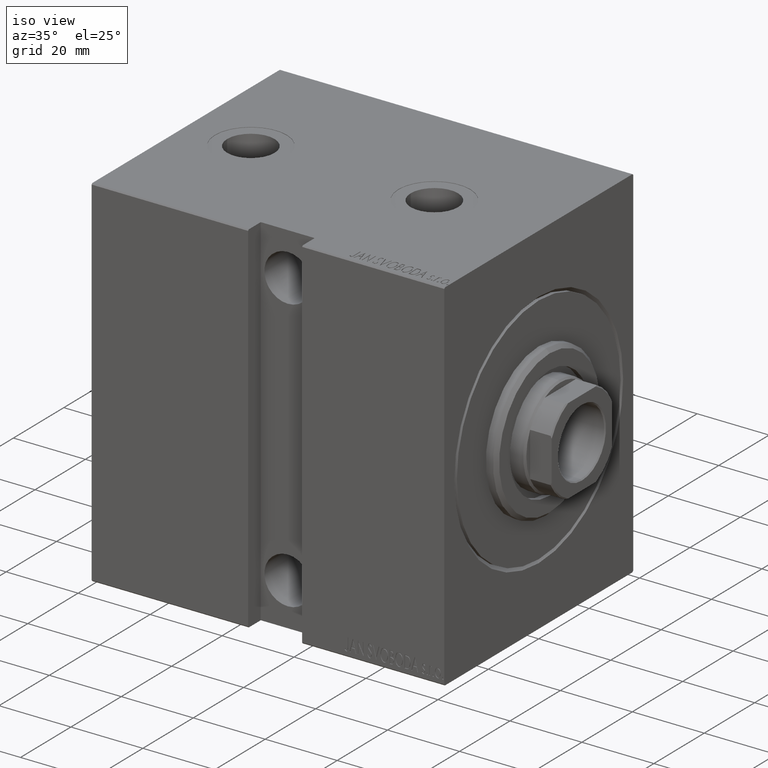
[diagram: clean part render]
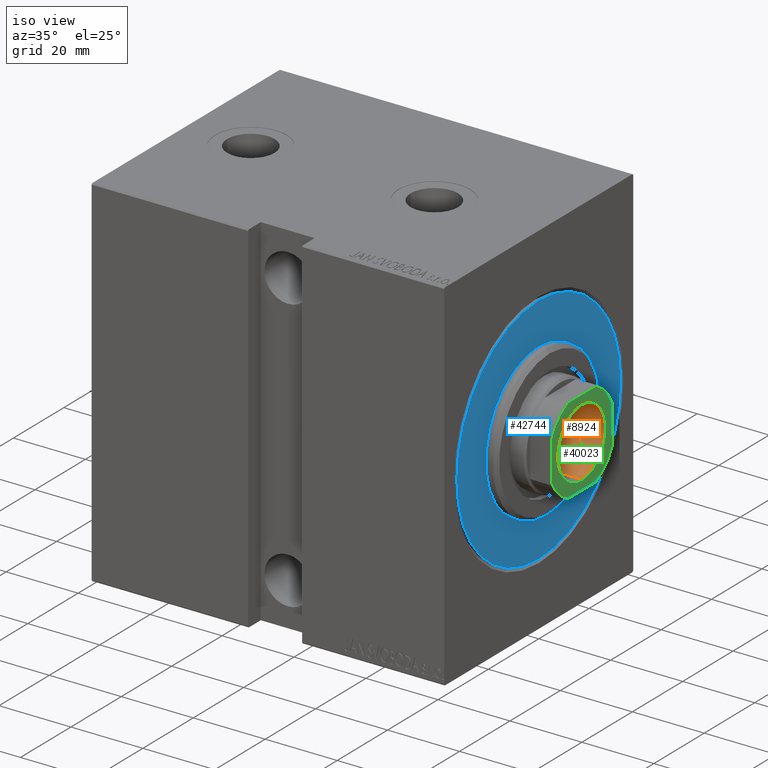
[diagram: same view with three faces highlighted in distinct colors, each labeled with its STEP entity id]
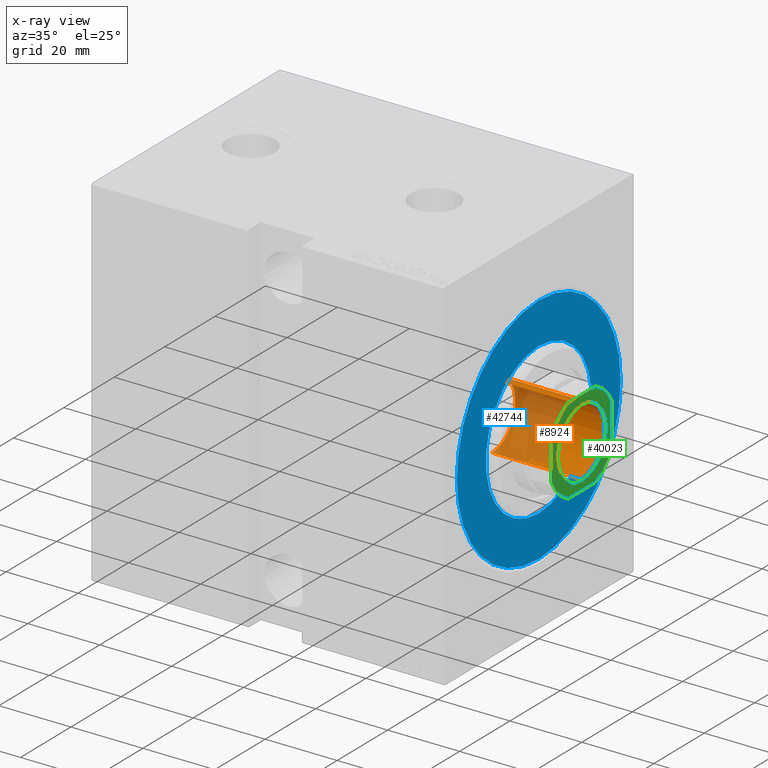
[diagram: x-ray of the same camera — body ghosted, the three highlighted faces saturated]
A machine part, iso view with three faces highlighted in distinct colors.
The next image is the same camera in x-ray (body ghosted, the three faces saturated) — at least one of them is partly hidden behind the body in this view.
Their STEP definitions:

[orange] entity #8924 — the highlighted cylindrical surface (partial cylindrical patch) has radius 9.25 mm, axis along (1, 0, -0).
#1691 = VERTEX_POINT ( 'NONE', #11548 ) ;
#8011 = VECTOR ( 'NONE', #29185, 1000.000000000000000 ) ;
#8526 = DIRECTION ( 'NONE',  ( -0.000000000000000000, -0.000000000000000000, 1.000000000000000000 ) ) ;
#8672 = VECTOR ( 'NONE', #35101, 1000.000000000000000 ) ;
#8924 = ADVANCED_FACE ( 'NONE', ( #23290 ), #12854, .F. ) ;
#9182 = VERTEX_POINT ( 'NONE', #21531 ) ;
#9196 = LINE ( 'NONE', #28970, #8011 ) ;
#11204 = VERTEX_POINT ( 'NONE', #18315 ) ;
#11548 = CARTESIAN_POINT ( 'NONE',  ( -9.249999999999994671, 1.132798289211300909E-15, 95.70000000000000284 ) ) ;
#12069 = LINE ( 'NONE', #41620, #8672 ) ;
#12141 = ORIENTED_EDGE ( 'NONE', *, *, #13142, .F. ) ;
#12854 = CYLINDRICAL_SURFACE ( 'NONE', #13900, 9.249999999999994671 ) ;
#13142 = EDGE_CURVE ( 'NONE', #11204, #9182, #13287, .T. ) ;
#13287 = CIRCLE ( 'NONE', #41736, 9.249999999999994671 ) ;
#13900 = AXIS2_PLACEMENT_3D ( 'NONE', #26130, #32621, #16770 ) ;
#16770 = DIRECTION ( 'NONE',  ( 1.000000000000000000, 0.000000000000000000, 0.000000000000000000 ) ) ;
#16860 = VERTEX_POINT ( 'NONE', #24659 ) ;
#18063 = DIRECTION ( 'NONE',  ( 0.000000000000000000, 0.000000000000000000, 1.000000000000000000 ) ) ;
#18315 = CARTESIAN_POINT ( 'NONE',  ( 9.249999999999994671, 0.000000000000000000, 71.00000000000001421 ) ) ;
#18784 = ORIENTED_EDGE ( 'NONE', *, *, #20023, .T. ) ;
#20023 = EDGE_CURVE ( 'NONE', #16860, #1691, #30958, .T. ) ;
#21531 = CARTESIAN_POINT ( 'NONE',  ( -9.249999999999994671, 1.132798289211300909E-15, 71.00000000000001421 ) ) ;
#23290 = FACE_OUTER_BOUND ( 'NONE', #38792, .T. ) ;
#24659 = CARTESIAN_POINT ( 'NONE',  ( 9.249999999999994671, 0.000000000000000000, 95.70000000000000284 ) ) ;
#26130 = CARTESIAN_POINT ( 'NONE',  ( 0.000000000000000000, 0.000000000000000000, 96.00000000000000000 ) ) ;
#28855 = AXIS2_PLACEMENT_3D ( 'NONE', #36749, #18063, #34350 ) ;
#28970 = CARTESIAN_POINT ( 'NONE',  ( -9.249999999999994671, 1.132798289211300909E-15, 96.00000000000000000 ) ) ;
#29185 = DIRECTION ( 'NONE',  ( -0.000000000000000000, -0.000000000000000000, 1.000000000000000000 ) ) ;
#30652 = ORIENTED_EDGE ( 'NONE', *, *, #36594, .T. ) ;
#30958 = CIRCLE ( 'NONE', #28855, 9.249999999999994671 ) ;
#32621 = DIRECTION ( 'NONE',  ( -0.000000000000000000, -0.000000000000000000, 1.000000000000000000 ) ) ;
#34350 = DIRECTION ( 'NONE',  ( 1.000000000000000000, 0.000000000000000000, 0.000000000000000000 ) ) ;
#35101 = DIRECTION ( 'NONE',  ( -0.000000000000000000, -0.000000000000000000, 1.000000000000000000 ) ) ;
#35373 = ORIENTED_EDGE ( 'NONE', *, *, #36976, .F. ) ;
#36594 = EDGE_CURVE ( 'NONE', #11204, #16860, #12069, .T. ) ;
#36749 = CARTESIAN_POINT ( 'NONE',  ( 0.000000000000000000, 0.000000000000000000, 95.70000000000000284 ) ) ;
#36976 = EDGE_CURVE ( 'NONE', #9182, #1691, #9196, .T. ) ;
#38285 = CARTESIAN_POINT ( 'NONE',  ( 0.000000000000000000, 0.000000000000000000, 71.00000000000001421 ) ) ;
#38792 = EDGE_LOOP ( 'NONE', ( #35373, #12141, #30652, #18784 ) ) ;
#39127 = DIRECTION ( 'NONE',  ( 1.000000000000000000, 0.000000000000000000, 0.000000000000000000 ) ) ;
#41620 = CARTESIAN_POINT ( 'NONE',  ( 9.249999999999994671, 0.000000000000000000, 96.00000000000000000 ) ) ;
#41736 = AXIS2_PLACEMENT_3D ( 'NONE', #38285, #8526, #39127 ) ;

[blue] entity #42744 — the highlighted planar face has unit normal (1, 0, 0).
#224 = CARTESIAN_POINT ( 'NONE',  ( 0.000000000000000000, 0.000000000000000000, 0.000000000000000000 ) ) ;
#2934 = EDGE_CURVE ( 'NONE', #21299, #18151, #36067, .T. ) ;
#3271 = DIRECTION ( 'NONE',  ( 0.000000000000000000, 0.000000000000000000, -1.000000000000000000 ) ) ;
#3283 = DIRECTION ( 'NONE',  ( 1.000000000000000000, 0.000000000000000000, 0.000000000000000000 ) ) ;
#4203 = ORIENTED_EDGE ( 'NONE', *, *, #34778, .F. ) ;
#6534 = FACE_BOUND ( 'NONE', #32728, .T. ) ;
#6968 = FACE_OUTER_BOUND ( 'NONE', #21206, .T. ) ;
#7317 = ORIENTED_EDGE ( 'NONE', *, *, #17319, .T. ) ;
#11096 = AXIS2_PLACEMENT_3D ( 'NONE', #11450, #37956, #25345 ) ;
#11223 = EDGE_CURVE ( 'NONE', #40612, #36296, #18800, .T. ) ;
#11450 = CARTESIAN_POINT ( 'NONE',  ( 0.000000000000000000, 0.000000000000000000, 0.000000000000000000 ) ) ;
#15886 = CARTESIAN_POINT ( 'NONE',  ( 0.000000000000000000, 3.980102097228898626E-15, 32.50000000000000000 ) ) ;
#17319 = EDGE_CURVE ( 'NONE', #18151, #21299, #31561, .T. ) ;
#18151 = VERTEX_POINT ( 'NONE', #26593 ) ;
#18800 = CIRCLE ( 'NONE', #36164, 21.00000000000000000 ) ;
#19790 = PLANE ( 'NONE',  #33707 ) ;
#21163 = CIRCLE ( 'NONE', #33639, 21.00000000000000000 ) ;
#21206 = EDGE_LOOP ( 'NONE', ( #7317, #27562 ) ) ;
#21299 = VERTEX_POINT ( 'NONE', #15886 ) ;
#21426 = DIRECTION ( 'NONE',  ( 0.000000000000000000, 0.000000000000000000, -1.000000000000000000 ) ) ;
#24666 = AXIS2_PLACEMENT_3D ( 'NONE', #224, #42795, #3271 ) ;
#24692 = DIRECTION ( 'NONE',  ( 1.000000000000000000, -0.000000000000000000, 0.000000000000000000 ) ) ;
#25345 = DIRECTION ( 'NONE',  ( 0.000000000000000000, 0.000000000000000000, -1.000000000000000000 ) ) ;
#26593 = CARTESIAN_POINT ( 'NONE',  ( 0.000000000000000000, 0.000000000000000000, -32.50000000000000000 ) ) ;
#27562 = ORIENTED_EDGE ( 'NONE', *, *, #2934, .T. ) ;
#28152 = CARTESIAN_POINT ( 'NONE',  ( 0.000000000000000000, 0.000000000000000000, 0.000000000000000000 ) ) ;
#28550 = ORIENTED_EDGE ( 'NONE', *, *, #11223, .F. ) ;
#29063 = CARTESIAN_POINT ( 'NONE',  ( 0.000000000000000000, 2.571758278209441661E-15, -21.00000000000000000 ) ) ;
#29791 = DIRECTION ( 'NONE',  ( 0.000000000000000000, 0.000000000000000000, -1.000000000000000000 ) ) ;
#30941 = CARTESIAN_POINT ( 'NONE',  ( 0.000000000000000000, 0.000000000000000000, 0.000000000000000000 ) ) ;
#31360 = DIRECTION ( 'NONE',  ( 1.000000000000000000, -0.000000000000000000, 0.000000000000000000 ) ) ;
#31561 = CIRCLE ( 'NONE', #24666, 32.50000000000000000 ) ;
#32728 = EDGE_LOOP ( 'NONE', ( #4203, #28550 ) ) ;
#33039 = CARTESIAN_POINT ( 'NONE',  ( 0.000000000000000000, 0.000000000000000000, 0.000000000000000000 ) ) ;
#33639 = AXIS2_PLACEMENT_3D ( 'NONE', #28152, #24692, #21426 ) ;
#33707 = AXIS2_PLACEMENT_3D ( 'NONE', #33039, #3283, #29791 ) ;
#34616 = DIRECTION ( 'NONE',  ( 0.000000000000000000, 0.000000000000000000, -1.000000000000000000 ) ) ;
#34778 = EDGE_CURVE ( 'NONE', #36296, #40612, #21163, .T. ) ;
#36067 = CIRCLE ( 'NONE', #11096, 32.50000000000000000 ) ;
#36164 = AXIS2_PLACEMENT_3D ( 'NONE', #30941, #31360, #34616 ) ;
#36296 = VERTEX_POINT ( 'NONE', #39526 ) ;
#37956 = DIRECTION ( 'NONE',  ( 1.000000000000000000, 0.000000000000000000, 0.000000000000000000 ) ) ;
#39526 = CARTESIAN_POINT ( 'NONE',  ( 0.000000000000000000, 0.000000000000000000, 21.00000000000000000 ) ) ;
#40612 = VERTEX_POINT ( 'NONE', #29063 ) ;
#42744 = ADVANCED_FACE ( 'NONE', ( #6968, #6534 ), #19790, .T. ) ;
#42795 = DIRECTION ( 'NONE',  ( 1.000000000000000000, 0.000000000000000000, 0.000000000000000000 ) ) ;

[green] entity #40023 — the highlighted planar face has unit normal (1, 0, -0).
#79 = VERTEX_POINT ( 'NONE', #18540 ) ;
#163 = CARTESIAN_POINT ( 'NONE',  ( 0.000000000000000000, 0.000000000000000000, 96.00000000000000000 ) ) ;
#614 = EDGE_CURVE ( 'NONE', #6730, #19639, #24929, .T. ) ;
#1075 = CARTESIAN_POINT ( 'NONE',  ( 0.000000000000000000, 0.000000000000000000, 96.00000000000000000 ) ) ;
#1114 = CARTESIAN_POINT ( 'NONE',  ( -5.499090833947067658, 11.99999999999999645, 96.00000000000000000 ) ) ;
#1576 = VERTEX_POINT ( 'NONE', #26894 ) ;
#2076 = CARTESIAN_POINT ( 'NONE',  ( -12.00000000000000178, 5.499090833947057000, 96.00000000000000000 ) ) ;
#2512 = VERTEX_POINT ( 'NONE', #6956 ) ;
#2694 = CARTESIAN_POINT ( 'NONE',  ( 11.99999999999999645, 5.499090833947039236, 96.00000000000000000 ) ) ;
#3247 = AXIS2_PLACEMENT_3D ( 'NONE', #26546, #12841, #39773 ) ;
#4165 = CIRCLE ( 'NONE', #31914, 13.20000000000000995 ) ;
#4728 = CARTESIAN_POINT ( 'NONE',  ( -12.00000000000000355, 11.99999999999999645, 96.00000000000000000 ) ) ;
#4834 = VERTEX_POINT ( 'NONE', #28014 ) ;
#5071 = VERTEX_POINT ( 'NONE', #7106 ) ;
#5979 = EDGE_CURVE ( 'NONE', #1576, #6730, #24728, .T. ) ;
#6134 = FACE_OUTER_BOUND ( 'NONE', #37270, .T. ) ;
#6245 = DIRECTION ( 'NONE',  ( 1.000000000000000000, 0.000000000000000000, 0.000000000000000000 ) ) ;
#6313 = VERTEX_POINT ( 'NONE', #15515 ) ;
#6730 = VERTEX_POINT ( 'NONE', #1114 ) ;
#6956 = CARTESIAN_POINT ( 'NONE',  ( 5.499090833947025914, -12.00000000000000355, 96.00000000000000000 ) ) ;
#7106 = CARTESIAN_POINT ( 'NONE',  ( 9.549999999999988276, 0.000000000000000000, 96.00000000000000000 ) ) ;
#8109 = CIRCLE ( 'NONE', #17812, 9.549999999999988276 ) ;
#8677 = EDGE_CURVE ( 'NONE', #2512, #79, #4165, .T. ) ;
#8967 = VECTOR ( 'NONE', #34488, 1000.000000000000000 ) ;
#9573 = ORIENTED_EDGE ( 'NONE', *, *, #8677, .T. ) ;
#9920 = ORIENTED_EDGE ( 'NONE', *, *, #11739, .T. ) ;
#10566 = CARTESIAN_POINT ( 'NONE',  ( -11.99999999999999822, -12.00000000000000355, 96.00000000000000000 ) ) ;
#11616 = ORIENTED_EDGE ( 'NONE', *, *, #36963, .T. ) ;
#11739 = EDGE_CURVE ( 'NONE', #4834, #2512, #40112, .T. ) ;
#12197 = AXIS2_PLACEMENT_3D ( 'NONE', #13198, #22984, #36004 ) ;
#12433 = ORIENTED_EDGE ( 'NONE', *, *, #27068, .T. ) ;
#12666 = CARTESIAN_POINT ( 'NONE',  ( 0.000000000000000000, 0.000000000000000000, 96.00000000000000000 ) ) ;
#12841 = DIRECTION ( 'NONE',  ( -0.000000000000000000, 0.000000000000000000, 1.000000000000000000 ) ) ;
#13198 = CARTESIAN_POINT ( 'NONE',  ( 0.000000000000000000, 0.000000000000000000, 96.00000000000000000 ) ) ;
#13285 = ORIENTED_EDGE ( 'NONE', *, *, #34245, .T. ) ;
#13527 = ORIENTED_EDGE ( 'NONE', *, *, #35348, .T. ) ;
#14288 = CIRCLE ( 'NONE', #12197, 9.549999999999988276 ) ;
#15125 = DIRECTION ( 'NONE',  ( 1.000000000000000000, 0.000000000000000000, 0.000000000000000000 ) ) ;
#15515 = CARTESIAN_POINT ( 'NONE',  ( -9.549999999999988276, 1.169537693185720980E-15, 96.00000000000000000 ) ) ;
#16540 = ORIENTED_EDGE ( 'NONE', *, *, #40783, .T. ) ;
#16572 = AXIS2_PLACEMENT_3D ( 'NONE', #1075, #24113, #15125 ) ;
#16660 = DIRECTION ( 'NONE',  ( 1.000000000000000000, 0.000000000000000000, 0.000000000000000000 ) ) ;
#16767 = CARTESIAN_POINT ( 'NONE',  ( 11.99999999999999645, 11.99999999999999645, 96.00000000000000000 ) ) ;
#17812 = AXIS2_PLACEMENT_3D ( 'NONE', #163, #26666, #6245 ) ;
#18540 = CARTESIAN_POINT ( 'NONE',  ( 12.00000000000000000, -5.499090833947034795, 96.00000000000000000 ) ) ;
#19053 = DIRECTION ( 'NONE',  ( -0.000000000000000000, 0.000000000000000000, 1.000000000000000000 ) ) ;
#19095 = AXIS2_PLACEMENT_3D ( 'NONE', #12666, #35908, #23903 ) ;
#19639 = VERTEX_POINT ( 'NONE', #2076 ) ;
#21124 = VECTOR ( 'NONE', #30060, 1000.000000000000000 ) ;
#21309 = ORIENTED_EDGE ( 'NONE', *, *, #5979, .T. ) ;
#22017 = PLANE ( 'NONE',  #38565 ) ;
#22279 = VECTOR ( 'NONE', #16660, 1000.000000000000000 ) ;
#22438 = CARTESIAN_POINT ( 'NONE',  ( 0.000000000000000000, 0.000000000000000000, 96.00000000000000000 ) ) ;
#22577 = CIRCLE ( 'NONE', #19095, 13.20000000000000995 ) ;
#22654 = DIRECTION ( 'NONE',  ( 1.000000000000000000, 0.000000000000000000, 0.000000000000000000 ) ) ;
#22753 = CARTESIAN_POINT ( 'NONE',  ( 0.000000000000000000, 0.000000000000000000, 96.00000000000000000 ) ) ;
#22984 = DIRECTION ( 'NONE',  ( 0.000000000000000000, -0.000000000000000000, -1.000000000000000000 ) ) ;
#23903 = DIRECTION ( 'NONE',  ( 1.000000000000000000, 0.000000000000000000, 0.000000000000000000 ) ) ;
#24113 = DIRECTION ( 'NONE',  ( -0.000000000000000000, 0.000000000000000000, 1.000000000000000000 ) ) ;
#24333 = EDGE_CURVE ( 'NONE', #5071, #6313, #14288, .T. ) ;
#24728 = LINE ( 'NONE', #4728, #8967 ) ;
#24929 = CIRCLE ( 'NONE', #16572, 13.20000000000002238 ) ;
#25491 = DIRECTION ( 'NONE',  ( -0.000000000000000000, 0.000000000000000000, 1.000000000000000000 ) ) ;
#26546 = CARTESIAN_POINT ( 'NONE',  ( 0.000000000000000000, 0.000000000000000000, 96.00000000000000000 ) ) ;
#26666 = DIRECTION ( 'NONE',  ( 0.000000000000000000, -0.000000000000000000, -1.000000000000000000 ) ) ;
#26894 = CARTESIAN_POINT ( 'NONE',  ( 5.499090833947041901, 11.99999999999999645, 96.00000000000000000 ) ) ;
#27062 = CARTESIAN_POINT ( 'NONE',  ( -12.00000000000000000, -5.499090833947057888, 96.00000000000000000 ) ) ;
#27068 = EDGE_CURVE ( 'NONE', #36822, #4834, #37240, .T. ) ;
#28014 = CARTESIAN_POINT ( 'NONE',  ( -5.499090833947052559, -12.00000000000000355, 96.00000000000000000 ) ) ;
#30060 = DIRECTION ( 'NONE',  ( 2.168404344971008868E-16, -1.000000000000000000, 0.000000000000000000 ) ) ;
#31914 = AXIS2_PLACEMENT_3D ( 'NONE', #22753, #19053, #42930 ) ;
#33097 = LINE ( 'NONE', #39824, #21124 ) ;
#34086 = ORIENTED_EDGE ( 'NONE', *, *, #614, .T. ) ;
#34102 = VERTEX_POINT ( 'NONE', #2694 ) ;
#34245 = EDGE_CURVE ( 'NONE', #19639, #36822, #33097, .T. ) ;
#34488 = DIRECTION ( 'NONE',  ( -1.000000000000000000, -0.000000000000000000, -0.000000000000000000 ) ) ;
#35348 = EDGE_CURVE ( 'NONE', #79, #34102, #39783, .T. ) ;
#35908 = DIRECTION ( 'NONE',  ( -0.000000000000000000, 0.000000000000000000, 1.000000000000000000 ) ) ;
#36004 = DIRECTION ( 'NONE',  ( 1.000000000000000000, 0.000000000000000000, 0.000000000000000000 ) ) ;
#36410 = EDGE_LOOP ( 'NONE', ( #42631, #16540 ) ) ;
#36822 = VERTEX_POINT ( 'NONE', #27062 ) ;
#36963 = EDGE_CURVE ( 'NONE', #34102, #1576, #22577, .T. ) ;
#37240 = CIRCLE ( 'NONE', #3247, 13.20000000000002238 ) ;
#37270 = EDGE_LOOP ( 'NONE', ( #13527, #11616, #21309, #34086, #13285, #12433, #9920, #9573 ) ) ;
#37807 = VECTOR ( 'NONE', #40221, 1000.000000000000000 ) ;
#38565 = AXIS2_PLACEMENT_3D ( 'NONE', #22438, #25491, #22654 ) ;
#39773 = DIRECTION ( 'NONE',  ( 1.000000000000000000, 0.000000000000000000, 0.000000000000000000 ) ) ;
#39783 = LINE ( 'NONE', #16767, #37807 ) ;
#39824 = CARTESIAN_POINT ( 'NONE',  ( -12.00000000000000355, 11.99999999999999645, 96.00000000000000000 ) ) ;
#40023 = ADVANCED_FACE ( 'NONE', ( #42192, #6134 ), #22017, .T. ) ;
#40112 = LINE ( 'NONE', #10566, #22279 ) ;
#40221 = DIRECTION ( 'NONE',  ( -2.168404344971008868E-16, 1.000000000000000000, -0.000000000000000000 ) ) ;
#40783 = EDGE_CURVE ( 'NONE', #6313, #5071, #8109, .T. ) ;
#42192 = FACE_BOUND ( 'NONE', #36410, .T. ) ;
#42631 = ORIENTED_EDGE ( 'NONE', *, *, #24333, .T. ) ;
#42930 = DIRECTION ( 'NONE',  ( 1.000000000000000000, 0.000000000000000000, 0.000000000000000000 ) ) ;